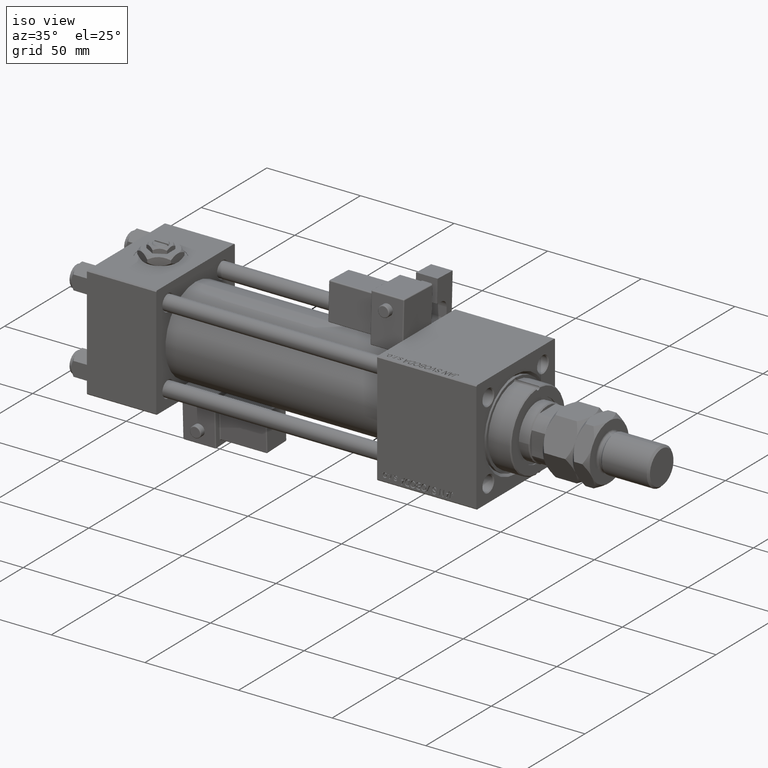
[diagram: clean part render]
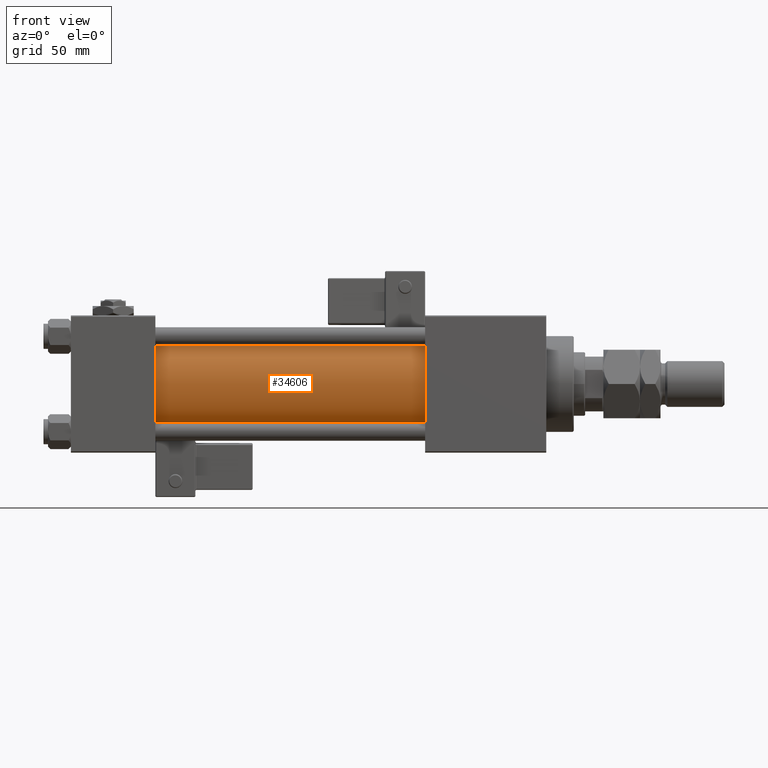
[diagram: tour spotlight — one face highlighted and labeled with its STEP entity id]
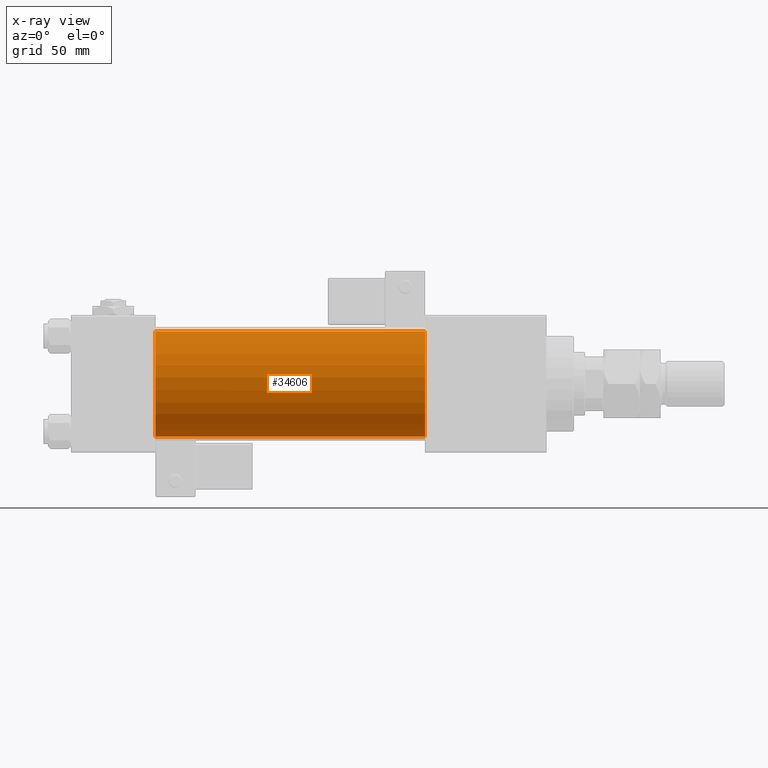
[diagram: x-ray of the same camera — body ghosted, this tour face saturated]
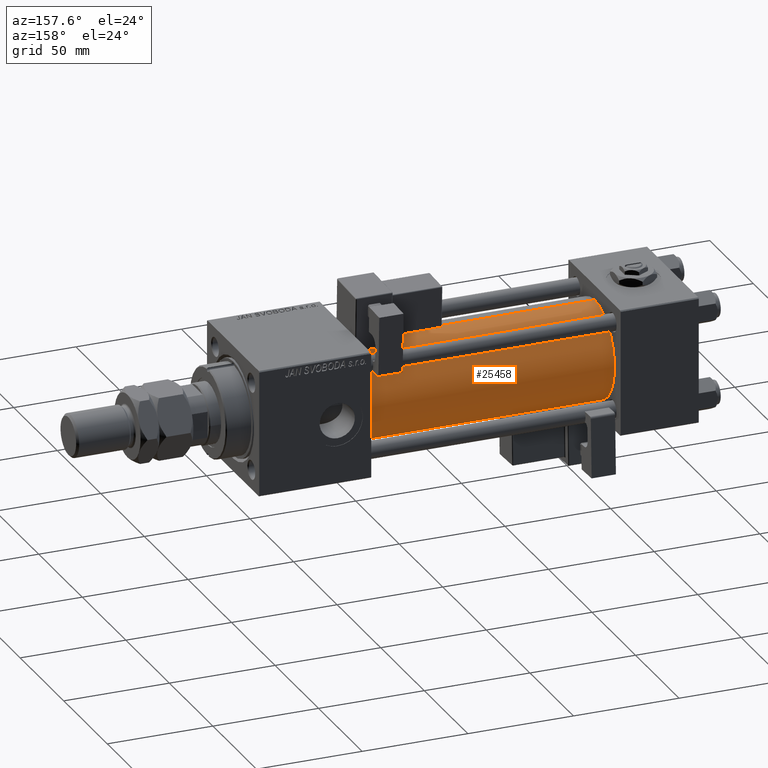
[diagram: tour spotlight — one face highlighted and labeled with its STEP entity id]
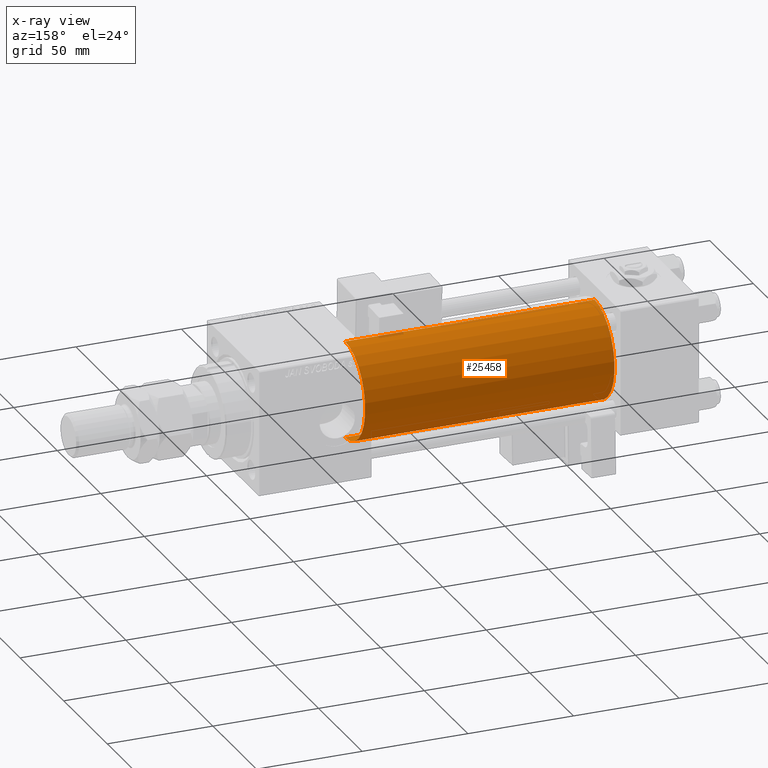
[diagram: x-ray of the same camera — body ghosted, this tour face saturated]
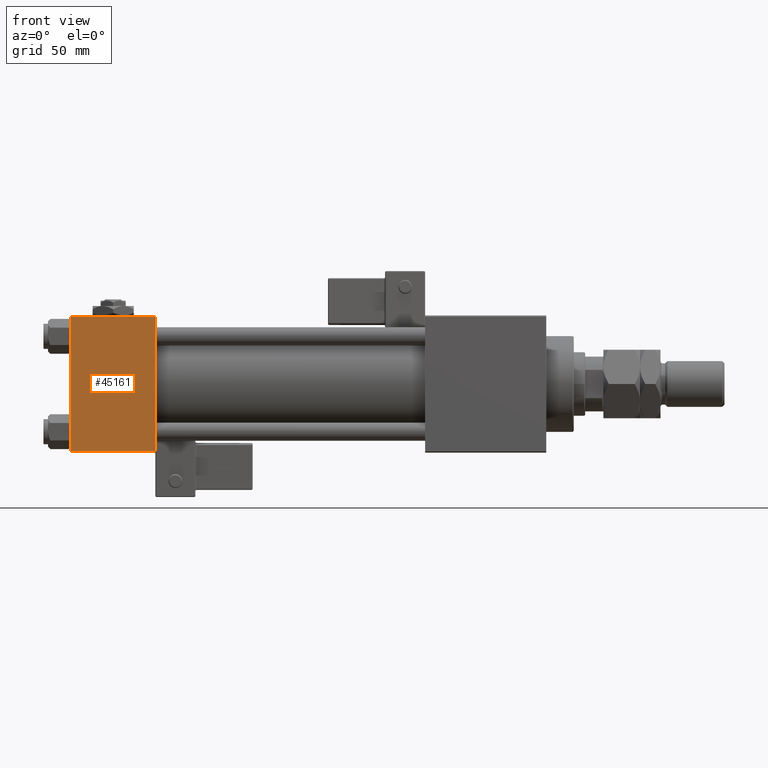
[diagram: tour spotlight — one face highlighted and labeled with its STEP entity id]
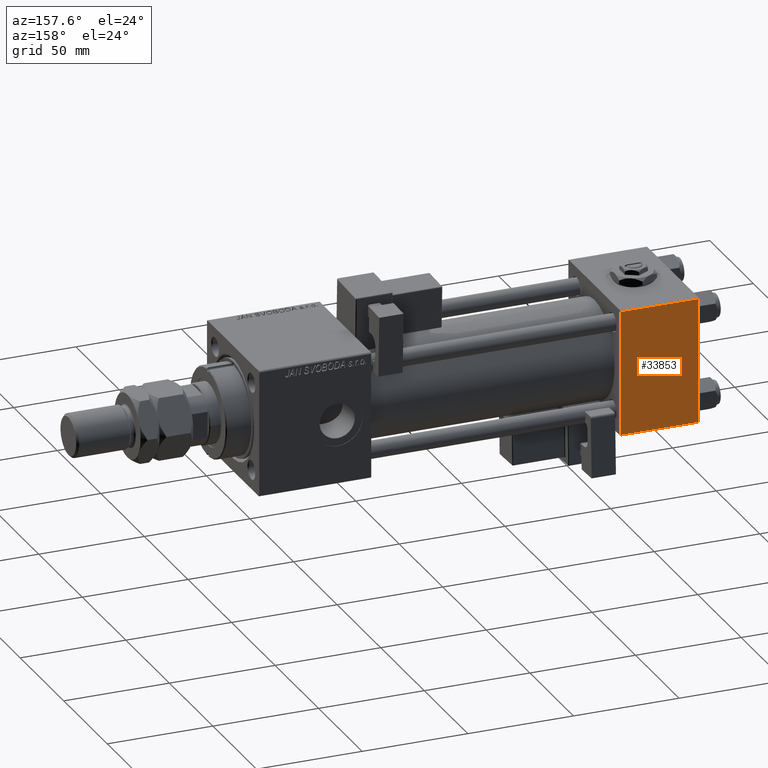
[diagram: tour spotlight — one face highlighted and labeled with its STEP entity id]
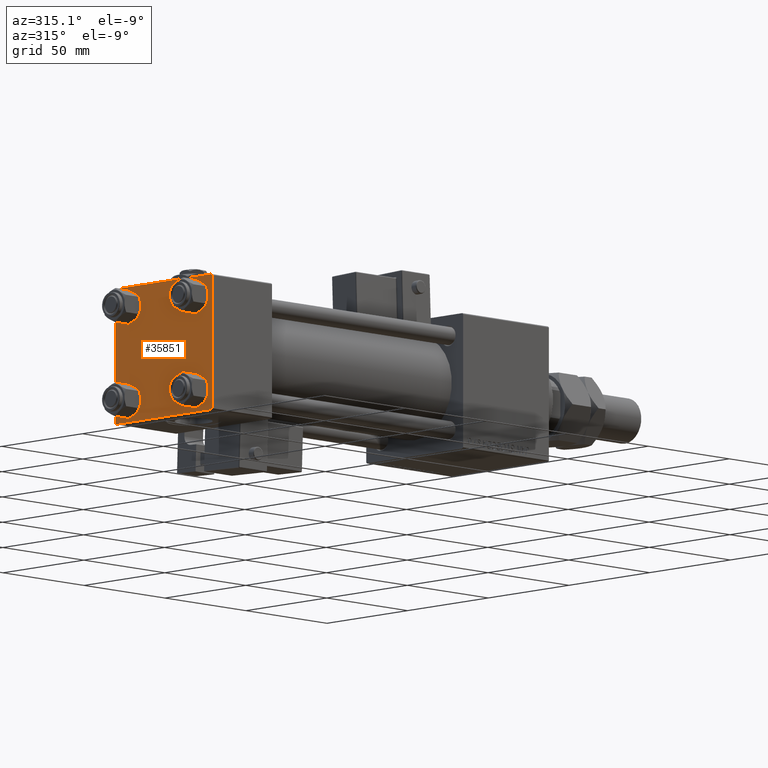
[diagram: tour spotlight — one face highlighted and labeled with its STEP entity id]
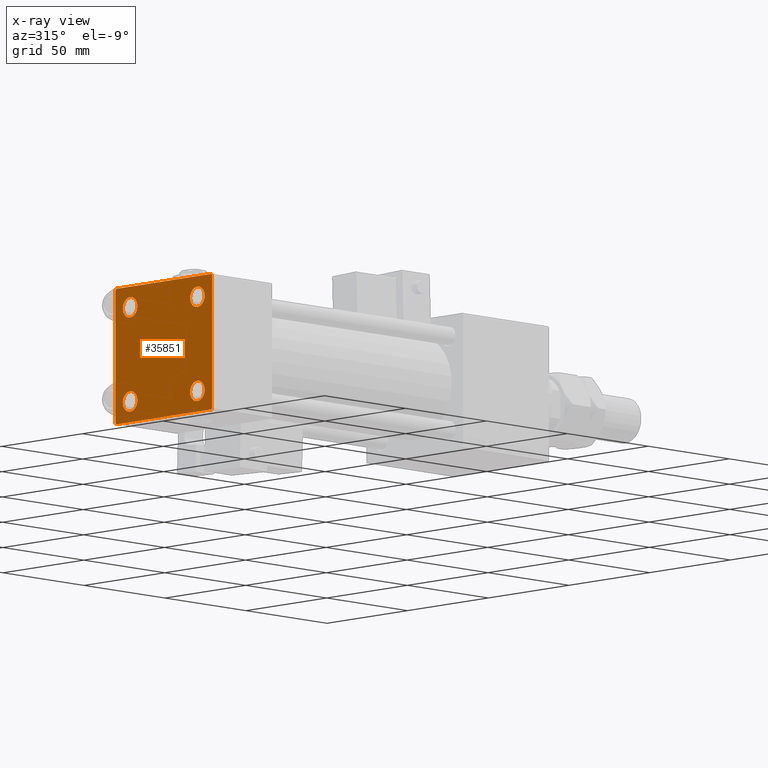
[diagram: x-ray of the same camera — body ghosted, this tour face saturated]
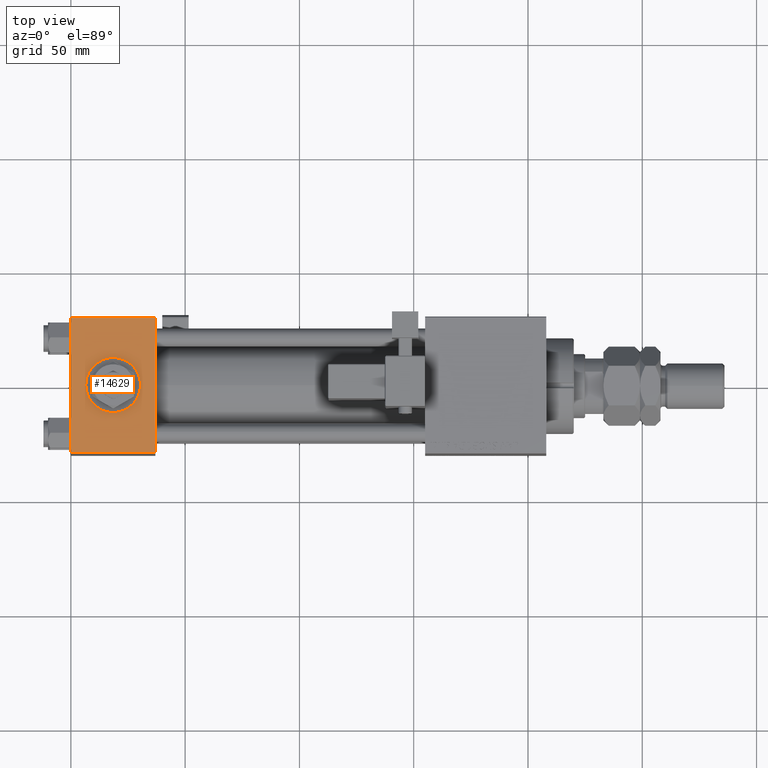
[diagram: tour spotlight — one face highlighted and labeled with its STEP entity id]
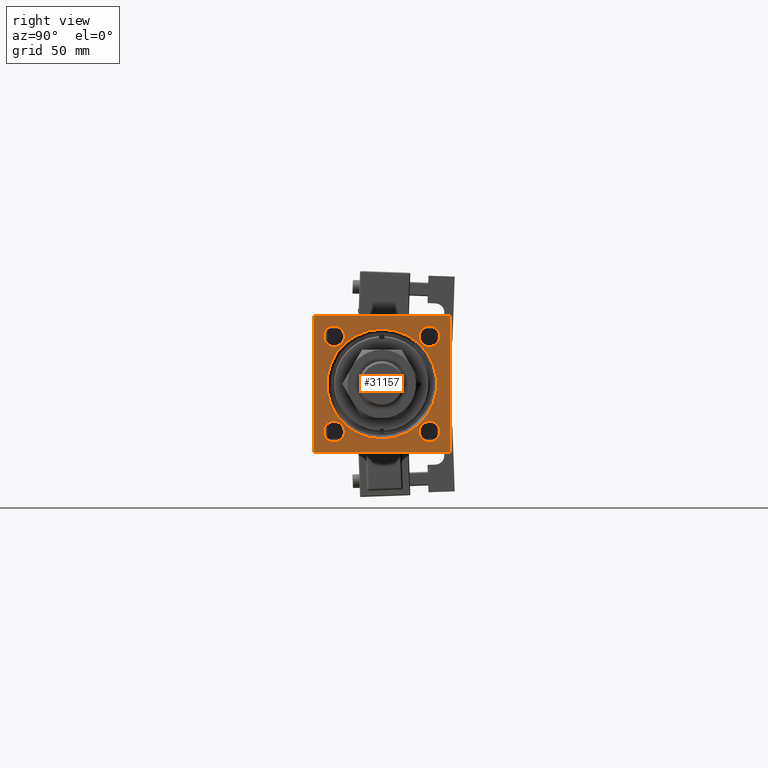
[diagram: tour spotlight — one face highlighted and labeled with its STEP entity id]
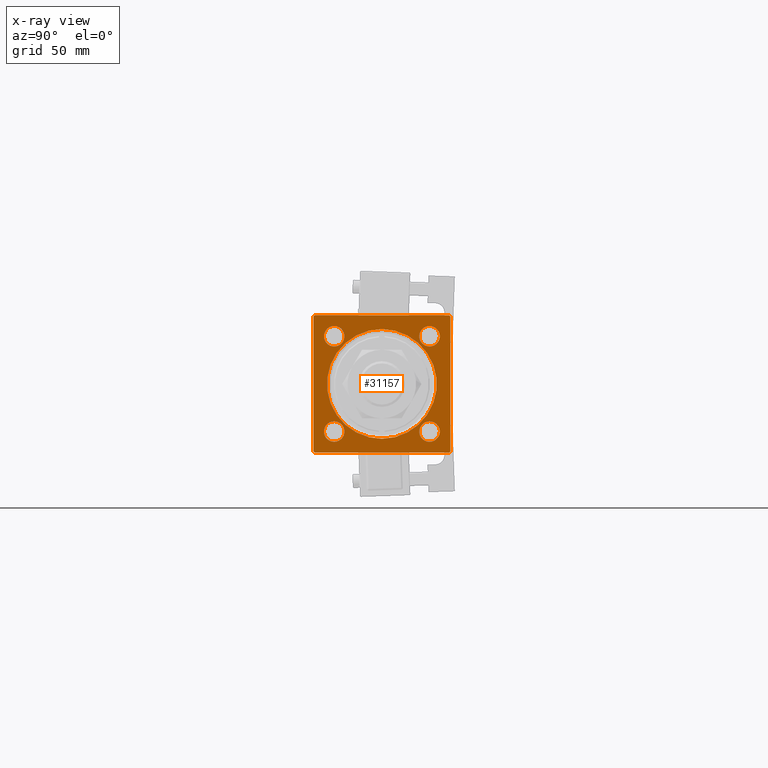
[diagram: x-ray of the same camera — body ghosted, this tour face saturated]
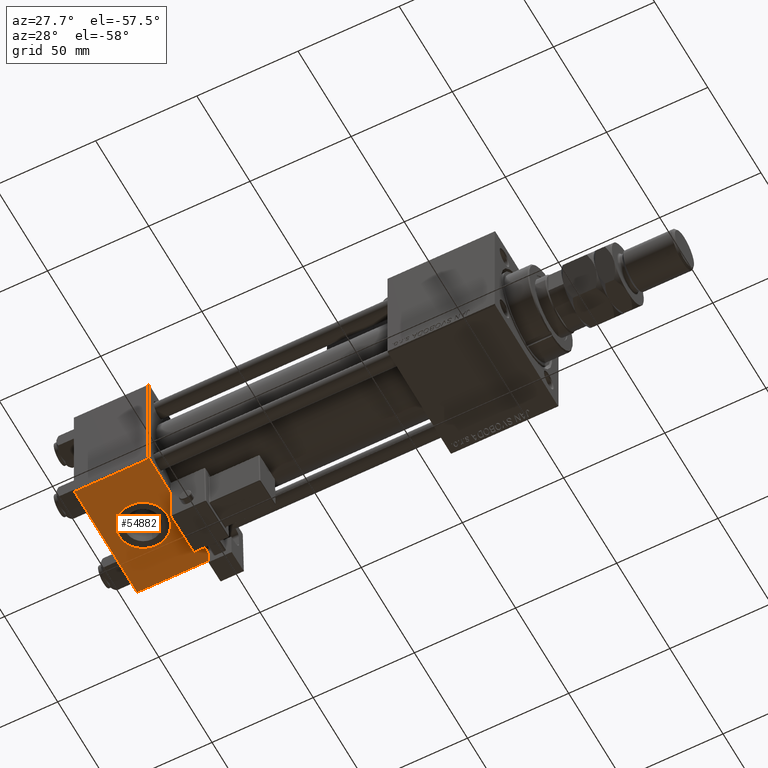
[diagram: tour spotlight — one face highlighted and labeled with its STEP entity id]
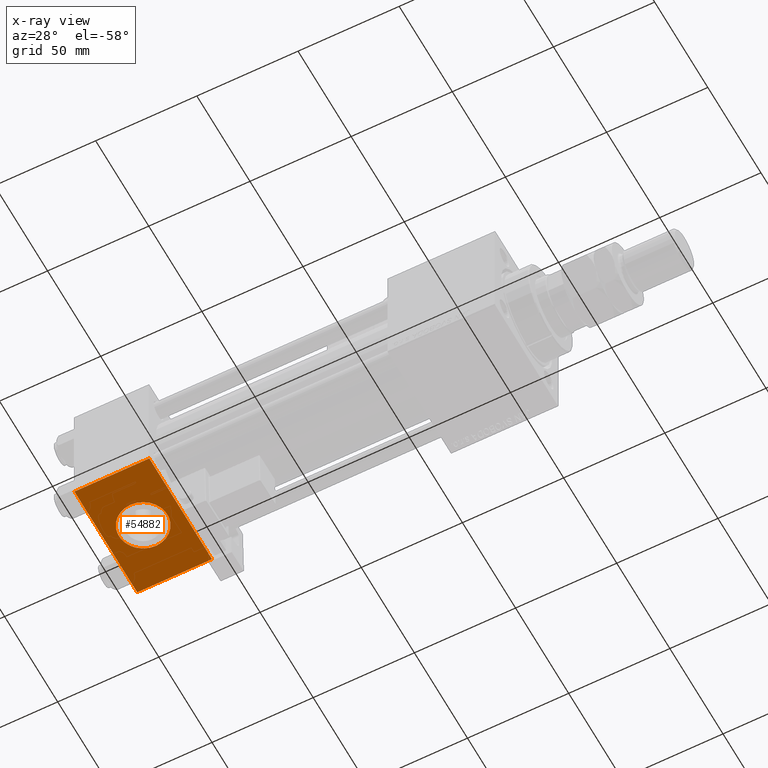
[diagram: x-ray of the same camera — body ghosted, this tour face saturated]
A machine part: a face-by-face anatomy tour. The part has 1411 B-rep faces; the first image is the clean iso view, then the 8 largest visible faces are spotlighted one at a time (largest first), each with its STEP entity span.

Face 1 — front view, entity #34606. An x-ray twin of the same camera follows (body ghosted, this face saturated) — the face is partly hidden behind the body. In plain terms, the highlighted cylindrical surface (partial cylindrical patch) has radius 23 mm, axis along (-1, -0, -0).
Definition (entity closure, byte-faithful):
#1485 = VERTEX_POINT ( 'NONE', #46100 ) ;
#4087 = DIRECTION ( 'NONE',  ( 0.000000000000000000, 0.000000000000000000, 1.000000000000000000 ) ) ;
#4525 = VERTEX_POINT ( 'NONE', #6107 ) ;
#5944 = DIRECTION ( 'NONE',  ( 0.000000000000000000, 0.000000000000000000, -1.000000000000000000 ) ) ;
#6107 = CARTESIAN_POINT ( 'NONE',  ( 37.00000000000000711, 2.146024240737016609E-16, -23.00000000000000000 ) ) ;
#6563 = DIRECTION ( 'NONE',  ( -1.000000000000000000, -0.000000000000000000, -0.000000000000000000 ) ) ;
#8332 = DIRECTION ( 'NONE',  ( -1.000000000000000000, -0.000000000000000000, -0.000000000000000000 ) ) ;
#10411 = CIRCLE ( 'NONE', #46615, 23.00000000000000000 ) ;
#10595 = VERTEX_POINT ( 'NONE', #48592 ) ;
#11440 = AXIS2_PLACEMENT_3D ( 'NONE', #12861, #8332, #4087 ) ;
#11646 = EDGE_CURVE ( 'NONE', #49626, #4525, #10411, .T. ) ;
#11949 = ORIENTED_EDGE ( 'NONE', *, *, #44717, .T. ) ;
#12386 = DIRECTION ( 'NONE',  ( 0.000000000000000000, 0.000000000000000000, 1.000000000000000000 ) ) ;
#12861 = CARTESIAN_POINT ( 'NONE',  ( 155.0000000000000000, -2.602085213965210642E-15, 0.000000000000000000 ) ) ;
#14253 = VECTOR ( 'NONE', #6563, 1000.000000000000000 ) ;
#15229 = EDGE_CURVE ( 'NONE', #1485, #4525, #28647, .T. ) ;
#15321 = CARTESIAN_POINT ( 'NONE',  ( 155.0000000000000000, 2.146024240737016609E-16, -23.00000000000000000 ) ) ;
#16066 = DIRECTION ( 'NONE',  ( 1.000000000000000000, -0.000000000000000000, 0.000000000000000000 ) ) ;
#19466 = LINE ( 'NONE', #49774, #48820 ) ;
#22360 = CARTESIAN_POINT ( 'NONE',  ( 37.00000000000000711, -2.602085213965210642E-15, 23.00000000000000000 ) ) ;
#24959 = ORIENTED_EDGE ( 'NONE', *, *, #11646, .T. ) ;
#27745 = DIRECTION ( 'NONE',  ( 1.000000000000000000, 0.000000000000000000, 0.000000000000000000 ) ) ;
#28647 = LINE ( 'NONE', #15321, #14253 ) ;
#31938 = DIRECTION ( 'NONE',  ( -1.000000000000000000, -0.000000000000000000, -0.000000000000000000 ) ) ;
#32277 = EDGE_LOOP ( 'NONE', ( #48260, #50847, #11949, #24959 ) ) ;
#33896 = EDGE_CURVE ( 'NONE', #10595, #1485, #40393, .T. ) ;
#34606 = ADVANCED_FACE ( 'NONE', ( #38923 ), #47134, .T. ) ;
#34989 = AXIS2_PLACEMENT_3D ( 'NONE', #37081, #27745, #5944 ) ;
#37081 = CARTESIAN_POINT ( 'NONE',  ( 155.0000000000000000, -2.602085213965210642E-15, 0.000000000000000000 ) ) ;
#38923 = FACE_OUTER_BOUND ( 'NONE', #32277, .T. ) ;
#40393 = CIRCLE ( 'NONE', #34989, 23.00000000000000000 ) ;
#44717 = EDGE_CURVE ( 'NONE', #10595, #49626, #19466, .T. ) ;
#46100 = CARTESIAN_POINT ( 'NONE',  ( 155.0000000000000000, 2.146024240737016609E-16, -23.00000000000000000 ) ) ;
#46615 = AXIS2_PLACEMENT_3D ( 'NONE', #50922, #16066, #12386 ) ;
#47134 = CYLINDRICAL_SURFACE ( 'NONE', #11440, 23.00000000000000000 ) ;
#48260 = ORIENTED_EDGE ( 'NONE', *, *, #15229, .F. ) ;
#48592 = CARTESIAN_POINT ( 'NONE',  ( 155.0000000000000000, -2.602085213965210642E-15, 23.00000000000000000 ) ) ;
#48820 = VECTOR ( 'NONE', #31938, 1000.000000000000000 ) ;
#49626 = VERTEX_POINT ( 'NONE', #22360 ) ;
#49774 = CARTESIAN_POINT ( 'NONE',  ( 155.0000000000000000, -2.602085213965210642E-15, 23.00000000000000000 ) ) ;
#50847 = ORIENTED_EDGE ( 'NONE', *, *, #33896, .F. ) ;
#50922 = CARTESIAN_POINT ( 'NONE',  ( 37.00000000000000711, -2.602085213965210642E-15, 0.000000000000000000 ) ) ;

Face 2 — auxiliary view, entity #25458. An x-ray twin of the same camera follows (body ghosted, this face saturated) — the face is partly hidden behind the body. In plain terms, the highlighted cylindrical surface (partial cylindrical patch) has radius 23 mm, axis along (-1, -0, -0).
Definition (entity closure, byte-faithful):
#1485 = VERTEX_POINT ( 'NONE', #46100 ) ;
#2649 = ORIENTED_EDGE ( 'NONE', *, *, #44717, .F. ) ;
#3792 = DIRECTION ( 'NONE',  ( 1.000000000000000000, 0.000000000000000000, 0.000000000000000000 ) ) ;
#4525 = VERTEX_POINT ( 'NONE', #6107 ) ;
#6107 = CARTESIAN_POINT ( 'NONE',  ( 37.00000000000000711, 2.146024240737016609E-16, -23.00000000000000000 ) ) ;
#6563 = DIRECTION ( 'NONE',  ( -1.000000000000000000, -0.000000000000000000, -0.000000000000000000 ) ) ;
#10595 = VERTEX_POINT ( 'NONE', #48592 ) ;
#14253 = VECTOR ( 'NONE', #6563, 1000.000000000000000 ) ;
#14384 = DIRECTION ( 'NONE',  ( 0.000000000000000000, 0.000000000000000000, 1.000000000000000000 ) ) ;
#14733 = EDGE_LOOP ( 'NONE', ( #49331, #19590, #45632, #2649 ) ) ;
#15229 = EDGE_CURVE ( 'NONE', #1485, #4525, #28647, .T. ) ;
#15321 = CARTESIAN_POINT ( 'NONE',  ( 155.0000000000000000, 2.146024240737016609E-16, -23.00000000000000000 ) ) ;
#16623 = AXIS2_PLACEMENT_3D ( 'NONE', #22902, #41299, #14384 ) ;
#16812 = CARTESIAN_POINT ( 'NONE',  ( 155.0000000000000000, -2.602085213965210642E-15, 0.000000000000000000 ) ) ;
#18653 = FACE_OUTER_BOUND ( 'NONE', #14733, .T. ) ;
#19466 = LINE ( 'NONE', #49774, #48820 ) ;
#19590 = ORIENTED_EDGE ( 'NONE', *, *, #15229, .T. ) ;
#22023 = DIRECTION ( 'NONE',  ( 0.000000000000000000, 0.000000000000000000, 1.000000000000000000 ) ) ;
#22360 = CARTESIAN_POINT ( 'NONE',  ( 37.00000000000000711, -2.602085213965210642E-15, 23.00000000000000000 ) ) ;
#22902 = CARTESIAN_POINT ( 'NONE',  ( 155.0000000000000000, -2.602085213965210642E-15, 0.000000000000000000 ) ) ;
#25458 = ADVANCED_FACE ( 'NONE', ( #18653 ), #53201, .T. ) ;
#26625 = EDGE_CURVE ( 'NONE', #4525, #49626, #44739, .T. ) ;
#27569 = AXIS2_PLACEMENT_3D ( 'NONE', #16812, #3792, #55909 ) ;
#28647 = LINE ( 'NONE', #15321, #14253 ) ;
#29402 = CARTESIAN_POINT ( 'NONE',  ( 37.00000000000000711, -2.602085213965210642E-15, 0.000000000000000000 ) ) ;
#30456 = EDGE_CURVE ( 'NONE', #1485, #10595, #52021, .T. ) ;
#31938 = DIRECTION ( 'NONE',  ( -1.000000000000000000, -0.000000000000000000, -0.000000000000000000 ) ) ;
#41299 = DIRECTION ( 'NONE',  ( -1.000000000000000000, -0.000000000000000000, -0.000000000000000000 ) ) ;
#44717 = EDGE_CURVE ( 'NONE', #10595, #49626, #19466, .T. ) ;
#44739 = CIRCLE ( 'NONE', #53786, 23.00000000000000000 ) ;
#45632 = ORIENTED_EDGE ( 'NONE', *, *, #26625, .T. ) ;
#46100 = CARTESIAN_POINT ( 'NONE',  ( 155.0000000000000000, 2.146024240737016609E-16, -23.00000000000000000 ) ) ;
#48592 = CARTESIAN_POINT ( 'NONE',  ( 155.0000000000000000, -2.602085213965210642E-15, 23.00000000000000000 ) ) ;
#48820 = VECTOR ( 'NONE', #31938, 1000.000000000000000 ) ;
#49331 = ORIENTED_EDGE ( 'NONE', *, *, #30456, .F. ) ;
#49626 = VERTEX_POINT ( 'NONE', #22360 ) ;
#49774 = CARTESIAN_POINT ( 'NONE',  ( 155.0000000000000000, -2.602085213965210642E-15, 23.00000000000000000 ) ) ;
#52021 = CIRCLE ( 'NONE', #27569, 23.00000000000000000 ) ;
#53201 = CYLINDRICAL_SURFACE ( 'NONE', #16623, 23.00000000000000000 ) ;
#53786 = AXIS2_PLACEMENT_3D ( 'NONE', #29402, #55743, #22023 ) ;
#55743 = DIRECTION ( 'NONE',  ( 1.000000000000000000, -0.000000000000000000, 0.000000000000000000 ) ) ;
#55909 = DIRECTION ( 'NONE',  ( 0.000000000000000000, 0.000000000000000000, -1.000000000000000000 ) ) ;

Face 3 — front view, entity #45161. In plain terms, the highlighted planar face has unit normal (0, 1, 0).
Definition (entity closure, byte-faithful):
#2973 = VECTOR ( 'NONE', #40322, 1000.000000000000000 ) ;
#7099 = VECTOR ( 'NONE', #9395, 1000.000000000000000 ) ;
#7804 = CARTESIAN_POINT ( 'NONE',  ( 37.00000000000000000, -30.00000000000000000, 29.99999999999999289 ) ) ;
#8611 = VERTEX_POINT ( 'NONE', #22937 ) ;
#9395 = DIRECTION ( 'NONE',  ( 1.000000000000000000, 0.000000000000000000, 0.000000000000000000 ) ) ;
#9642 = DIRECTION ( 'NONE',  ( -1.000000000000000000, 0.000000000000000000, 0.000000000000000000 ) ) ;
#9933 = FACE_OUTER_BOUND ( 'NONE', #32912, .T. ) ;
#10331 = ORIENTED_EDGE ( 'NONE', *, *, #33857, .T. ) ;
#11793 = VERTEX_POINT ( 'NONE', #47658 ) ;
#12286 = CARTESIAN_POINT ( 'NONE',  ( 37.00000000000000000, -30.00000000000000000, 29.49999999999999289 ) ) ;
#15086 = CARTESIAN_POINT ( 'NONE',  ( 0.000000000000000000, -30.00000000000000000, 29.99999999999999289 ) ) ;
#16851 = LINE ( 'NONE', #7804, #23305 ) ;
#20757 = ORIENTED_EDGE ( 'NONE', *, *, #37367, .F. ) ;
#21590 = CARTESIAN_POINT ( 'NONE',  ( 37.00000000000000000, -30.00000000000000000, -29.50000000000001776 ) ) ;
#22937 = CARTESIAN_POINT ( 'NONE',  ( 37.00000000000000000, -30.00000000000000000, -29.50000000000001776 ) ) ;
#23231 = DIRECTION ( 'NONE',  ( -0.000000000000000000, 1.000000000000000000, 0.000000000000000000 ) ) ;
#23281 = CARTESIAN_POINT ( 'NONE',  ( 0.000000000000000000, -30.00000000000000000, 29.49999999999999289 ) ) ;
#23305 = VECTOR ( 'NONE', #25068, 1000.000000000000000 ) ;
#23847 = ORIENTED_EDGE ( 'NONE', *, *, #55403, .T. ) ;
#25068 = DIRECTION ( 'NONE',  ( 0.000000000000000000, 0.000000000000000000, -1.000000000000000000 ) ) ;
#25594 = CARTESIAN_POINT ( 'NONE',  ( 37.00000000000000000, -30.00000000000000000, 29.49999999999999289 ) ) ;
#26923 = PLANE ( 'NONE',  #50614 ) ;
#30447 = VERTEX_POINT ( 'NONE', #25594 ) ;
#32014 = DIRECTION ( 'NONE',  ( 0.000000000000000000, -0.000000000000000000, 1.000000000000000000 ) ) ;
#32912 = EDGE_LOOP ( 'NONE', ( #23847, #44282, #20757, #10331 ) ) ;
#33857 = EDGE_CURVE ( 'NONE', #30447, #44084, #51379, .T. ) ;
#37367 = EDGE_CURVE ( 'NONE', #30447, #8611, #16851, .T. ) ;
#39291 = EDGE_CURVE ( 'NONE', #11793, #8611, #43124, .T. ) ;
#40322 = DIRECTION ( 'NONE',  ( 0.000000000000000000, 0.000000000000000000, -1.000000000000000000 ) ) ;
#41282 = VECTOR ( 'NONE', #9642, 1000.000000000000000 ) ;
#43124 = LINE ( 'NONE', #21590, #7099 ) ;
#44084 = VERTEX_POINT ( 'NONE', #23281 ) ;
#44282 = ORIENTED_EDGE ( 'NONE', *, *, #39291, .T. ) ;
#44494 = CARTESIAN_POINT ( 'NONE',  ( 37.00000000000000000, -30.00000000000000000, 29.99999999999999289 ) ) ;
#45161 = ADVANCED_FACE ( 'NONE', ( #9933 ), #26923, .F. ) ;
#47658 = CARTESIAN_POINT ( 'NONE',  ( 0.000000000000000000, -30.00000000000000000, -29.50000000000001776 ) ) ;
#50614 = AXIS2_PLACEMENT_3D ( 'NONE', #44494, #23231, #32014 ) ;
#51379 = LINE ( 'NONE', #12286, #41282 ) ;
#53632 = LINE ( 'NONE', #15086, #2973 ) ;
#55403 = EDGE_CURVE ( 'NONE', #44084, #11793, #53632, .T. ) ;

Face 4 — auxiliary view, entity #33853. In plain terms, the highlighted planar face has unit normal (0, 1, 0).
Definition (entity closure, byte-faithful):
#486 = LINE ( 'NONE', #25967, #8111 ) ;
#4036 = DIRECTION ( 'NONE',  ( 0.000000000000000000, 0.000000000000000000, -1.000000000000000000 ) ) ;
#4919 = CARTESIAN_POINT ( 'NONE',  ( 37.00000000000000000, 29.99999999999999289, 29.50000000000000000 ) ) ;
#5387 = DIRECTION ( 'NONE',  ( 0.000000000000000000, -0.000000000000000000, 1.000000000000000000 ) ) ;
#8111 = VECTOR ( 'NONE', #35293, 1000.000000000000000 ) ;
#9911 = CARTESIAN_POINT ( 'NONE',  ( 37.00000000000000000, 29.99999999999999289, 30.00000000000000000 ) ) ;
#11634 = ORIENTED_EDGE ( 'NONE', *, *, #44848, .F. ) ;
#11853 = DIRECTION ( 'NONE',  ( -1.000000000000000000, 0.000000000000000000, 0.000000000000000000 ) ) ;
#12204 = EDGE_LOOP ( 'NONE', ( #16601, #18242, #11634, #41245 ) ) ;
#16601 = ORIENTED_EDGE ( 'NONE', *, *, #39226, .T. ) ;
#16809 = DIRECTION ( 'NONE',  ( -0.000000000000000000, 1.000000000000000000, 0.000000000000000000 ) ) ;
#17659 = EDGE_CURVE ( 'NONE', #27793, #28995, #50109, .T. ) ;
#17892 = CARTESIAN_POINT ( 'NONE',  ( 37.00000000000000000, 29.99999999999999289, 30.00000000000000000 ) ) ;
#18242 = ORIENTED_EDGE ( 'NONE', *, *, #17659, .T. ) ;
#19922 = VECTOR ( 'NONE', #11853, 1000.000000000000000 ) ;
#25967 = CARTESIAN_POINT ( 'NONE',  ( 0.000000000000000000, 29.99999999999999289, 30.00000000000000000 ) ) ;
#26765 = VERTEX_POINT ( 'NONE', #44375 ) ;
#27793 = VERTEX_POINT ( 'NONE', #39104 ) ;
#28995 = VERTEX_POINT ( 'NONE', #46698 ) ;
#29330 = CARTESIAN_POINT ( 'NONE',  ( 37.00000000000000000, 29.99999999999999289, 29.50000000000000000 ) ) ;
#33301 = DIRECTION ( 'NONE',  ( 1.000000000000000000, 0.000000000000000000, 0.000000000000000000 ) ) ;
#33853 = ADVANCED_FACE ( 'NONE', ( #48447 ), #47124, .T. ) ;
#35293 = DIRECTION ( 'NONE',  ( 0.000000000000000000, 0.000000000000000000, -1.000000000000000000 ) ) ;
#39104 = CARTESIAN_POINT ( 'NONE',  ( 37.00000000000000000, 29.99999999999999289, -29.50000000000000000 ) ) ;
#39226 = EDGE_CURVE ( 'NONE', #43056, #27793, #48202, .T. ) ;
#41245 = ORIENTED_EDGE ( 'NONE', *, *, #49373, .T. ) ;
#41579 = VECTOR ( 'NONE', #33301, 1000.000000000000000 ) ;
#41600 = CARTESIAN_POINT ( 'NONE',  ( 37.00000000000000000, 29.99999999999999289, -29.50000000000000000 ) ) ;
#42345 = LINE ( 'NONE', #29330, #41579 ) ;
#43056 = VERTEX_POINT ( 'NONE', #4919 ) ;
#44375 = CARTESIAN_POINT ( 'NONE',  ( 0.000000000000000000, 29.99999999999999289, 29.50000000000000000 ) ) ;
#44848 = EDGE_CURVE ( 'NONE', #26765, #28995, #486, .T. ) ;
#46014 = VECTOR ( 'NONE', #4036, 1000.000000000000000 ) ;
#46698 = CARTESIAN_POINT ( 'NONE',  ( 0.000000000000000000, 29.99999999999999289, -29.50000000000000000 ) ) ;
#47124 = PLANE ( 'NONE',  #52139 ) ;
#48202 = LINE ( 'NONE', #17892, #46014 ) ;
#48447 = FACE_OUTER_BOUND ( 'NONE', #12204, .T. ) ;
#49373 = EDGE_CURVE ( 'NONE', #26765, #43056, #42345, .T. ) ;
#50109 = LINE ( 'NONE', #41600, #19922 ) ;
#52139 = AXIS2_PLACEMENT_3D ( 'NONE', #9911, #16809, #5387 ) ;

Face 5 — auxiliary view, entity #35851. An x-ray twin of the same camera follows (body ghosted, this face saturated) — the face is partly hidden behind the body. In plain terms, the highlighted planar face has unit normal (-1, 0, 0).
Definition (entity closure, byte-faithful):
#271 = AXIS2_PLACEMENT_3D ( 'NONE', #17066, #43147, #3765 ) ;
#486 = LINE ( 'NONE', #25967, #8111 ) ;
#821 = CARTESIAN_POINT ( 'NONE',  ( 0.000000000000000000, -20.84999999999999076, -20.85000000000000497 ) ) ;
#1680 = EDGE_CURVE ( 'NONE', #29343, #11793, #36129, .T. ) ;
#1762 = VERTEX_POINT ( 'NONE', #42051 ) ;
#1829 = ORIENTED_EDGE ( 'NONE', *, *, #36411, .T. ) ;
#1886 = CARTESIAN_POINT ( 'NONE',  ( 0.000000000000000000, -20.84999999999999076, 20.85000000000000497 ) ) ;
#2711 = EDGE_CURVE ( 'NONE', #3661, #26765, #27080, .T. ) ;
#2733 = CARTESIAN_POINT ( 'NONE',  ( 0.000000000000000000, 20.84999999999999787, -20.85000000000000142 ) ) ;
#2849 = CIRCLE ( 'NONE', #15480, 4.500000000000017764 ) ;
#2973 = VECTOR ( 'NONE', #40322, 1000.000000000000000 ) ;
#3661 = VERTEX_POINT ( 'NONE', #25048 ) ;
#3765 = DIRECTION ( 'NONE',  ( 0.000000000000000000, 0.000000000000000000, 1.000000000000000000 ) ) ;
#4039 = CARTESIAN_POINT ( 'NONE',  ( 0.000000000000000000, 20.84999999999999787, 16.34999999999998366 ) ) ;
#4191 = CARTESIAN_POINT ( 'NONE',  ( 0.000000000000000000, 20.84999999999999787, 25.35000000000001918 ) ) ;
#4349 = ORIENTED_EDGE ( 'NONE', *, *, #38406, .T. ) ;
#5168 = VERTEX_POINT ( 'NONE', #4039 ) ;
#5689 = ORIENTED_EDGE ( 'NONE', *, *, #23198, .F. ) ;
#5753 = VERTEX_POINT ( 'NONE', #33650 ) ;
#6025 = VERTEX_POINT ( 'NONE', #46542 ) ;
#7095 = EDGE_LOOP ( 'NONE', ( #32974, #46455 ) ) ;
#7270 = DIRECTION ( 'NONE',  ( 0.000000000000000000, 0.000000000000000000, 1.000000000000000000 ) ) ;
#7428 = DIRECTION ( 'NONE',  ( -0.000000000000000000, 0.000000000000000000, 1.000000000000000000 ) ) ;
#7634 = EDGE_LOOP ( 'NONE', ( #34614, #4349 ) ) ;
#7797 = VERTEX_POINT ( 'NONE', #10667 ) ;
#7826 = EDGE_CURVE ( 'NONE', #7797, #5753, #46460, .T. ) ;
#8111 = VECTOR ( 'NONE', #35293, 1000.000000000000000 ) ;
#9564 = CIRCLE ( 'NONE', #41225, 4.500000000000017764 ) ;
#10545 = DIRECTION ( 'NONE',  ( 1.000000000000000000, -0.000000000000000000, 0.000000000000000000 ) ) ;
#10667 = CARTESIAN_POINT ( 'NONE',  ( 0.000000000000000000, 20.84999999999999787, -16.34999999999998366 ) ) ;
#11241 = CARTESIAN_POINT ( 'NONE',  ( 0.000000000000000000, -20.84999999999999076, -20.85000000000000497 ) ) ;
#11621 = CIRCLE ( 'NONE', #42392, 4.500000000000017764 ) ;
#11793 = VERTEX_POINT ( 'NONE', #47658 ) ;
#11952 = DIRECTION ( 'NONE',  ( -1.000000000000000000, 0.000000000000000000, -0.000000000000000000 ) ) ;
#12317 = CARTESIAN_POINT ( 'NONE',  ( 0.000000000000000000, 20.84999999999999787, 20.85000000000000142 ) ) ;
#13405 = EDGE_CURVE ( 'NONE', #32870, #48030, #9564, .T. ) ;
#14007 = CARTESIAN_POINT ( 'NONE',  ( 0.000000000000000000, -29.50000000000000000, -30.00000000000000711 ) ) ;
#14493 = DIRECTION ( 'NONE',  ( 0.000000000000000000, 0.000000000000000000, 1.000000000000000000 ) ) ;
#15057 = CARTESIAN_POINT ( 'NONE',  ( 0.000000000000000000, -20.84999999999999076, 20.85000000000000497 ) ) ;
#15086 = CARTESIAN_POINT ( 'NONE',  ( 0.000000000000000000, -30.00000000000000000, 29.99999999999999289 ) ) ;
#15255 = CARTESIAN_POINT ( 'NONE',  ( 0.000000000000000000, -20.84999999999999076, 16.34999999999998721 ) ) ;
#15310 = ORIENTED_EDGE ( 'NONE', *, *, #46204, .T. ) ;
#15480 = AXIS2_PLACEMENT_3D ( 'NONE', #15057, #10545, #14493 ) ;
#16013 = EDGE_CURVE ( 'NONE', #48030, #32870, #2849, .T. ) ;
#16666 = CARTESIAN_POINT ( 'NONE',  ( 0.000000000000000000, 29.99999999999999289, 30.00000000000000000 ) ) ;
#16944 = DIRECTION ( 'NONE',  ( 0.000000000000000000, -1.000000000000000000, -1.156482317317871725E-16 ) ) ;
#17066 = CARTESIAN_POINT ( 'NONE',  ( 0.000000000000000000, 20.84999999999999787, -20.85000000000000142 ) ) ;
#17269 = EDGE_LOOP ( 'NONE', ( #15310, #1829 ) ) ;
#18030 = DIRECTION ( 'NONE',  ( 0.000000000000000000, 0.7071067811865474617, -0.7071067811865474617 ) ) ;
#18578 = CARTESIAN_POINT ( 'NONE',  ( 0.000000000000000000, -29.75000000000001066, -29.75000000000001066 ) ) ;
#19120 = CARTESIAN_POINT ( 'NONE',  ( 0.000000000000000000, 29.99999999999999289, -30.00000000000000000 ) ) ;
#20061 = CARTESIAN_POINT ( 'NONE',  ( -0.000000000000000000, -29.74999999999999645, 29.74999999999999645 ) ) ;
#20907 = LINE ( 'NONE', #16666, #48212 ) ;
#20961 = CARTESIAN_POINT ( 'NONE',  ( 0.000000000000000000, 20.84999999999999787, 20.85000000000000142 ) ) ;
#21008 = VECTOR ( 'NONE', #18030, 1000.000000000000114 ) ;
#21831 = EDGE_CURVE ( 'NONE', #5753, #7797, #34638, .T. ) ;
#21839 = CARTESIAN_POINT ( 'NONE',  ( 0.000000000000000000, -20.84999999999999076, 25.35000000000002274 ) ) ;
#22572 = DIRECTION ( 'NONE',  ( 0.000000000000000000, 0.000000000000000000, 1.000000000000000000 ) ) ;
#22816 = LINE ( 'NONE', #19120, #25176 ) ;
#23198 = EDGE_CURVE ( 'NONE', #3661, #48634, #20907, .T. ) ;
#23281 = CARTESIAN_POINT ( 'NONE',  ( 0.000000000000000000, -30.00000000000000000, 29.49999999999999289 ) ) ;
#23688 = DIRECTION ( 'NONE',  ( 0.000000000000000000, 0.000000000000000000, 1.000000000000000000 ) ) ;
#24891 = CARTESIAN_POINT ( 'NONE',  ( 0.000000000000000000, 29.74999999999957723, -29.75000000000040501 ) ) ;
#25048 = CARTESIAN_POINT ( 'NONE',  ( 0.000000000000000000, 29.49999999999999289, 30.00000000000000000 ) ) ;
#25176 = VECTOR ( 'NONE', #49428, 1000.000000000000000 ) ;
#25625 = AXIS2_PLACEMENT_3D ( 'NONE', #2733, #41529, #23688 ) ;
#25758 = ORIENTED_EDGE ( 'NONE', *, *, #1680, .T. ) ;
#25967 = CARTESIAN_POINT ( 'NONE',  ( 0.000000000000000000, 29.99999999999999289, 30.00000000000000000 ) ) ;
#26314 = DIRECTION ( 'NONE',  ( 1.000000000000000000, -0.000000000000000000, 0.000000000000000000 ) ) ;
#26641 = VERTEX_POINT ( 'NONE', #4191 ) ;
#26765 = VERTEX_POINT ( 'NONE', #44375 ) ;
#27080 = LINE ( 'NONE', #48606, #21008 ) ;
#27737 = ORIENTED_EDGE ( 'NONE', *, *, #7826, .T. ) ;
#28995 = VERTEX_POINT ( 'NONE', #46698 ) ;
#29151 = LINE ( 'NONE', #24891, #44768 ) ;
#29343 = VERTEX_POINT ( 'NONE', #14007 ) ;
#29522 = FACE_OUTER_BOUND ( 'NONE', #35238, .T. ) ;
#29819 = ORIENTED_EDGE ( 'NONE', *, *, #55403, .F. ) ;
#30340 = EDGE_CURVE ( 'NONE', #28995, #6025, #29151, .T. ) ;
#31601 = DIRECTION ( 'NONE',  ( 0.000000000000000000, -0.7071067811865474617, 0.7071067811865474617 ) ) ;
#32306 = EDGE_CURVE ( 'NONE', #44084, #48634, #41038, .T. ) ;
#32870 = VERTEX_POINT ( 'NONE', #21839 ) ;
#32974 = ORIENTED_EDGE ( 'NONE', *, *, #13405, .T. ) ;
#33169 = ORIENTED_EDGE ( 'NONE', *, *, #32306, .T. ) ;
#33324 = AXIS2_PLACEMENT_3D ( 'NONE', #821, #26314, #35363 ) ;
#33650 = CARTESIAN_POINT ( 'NONE',  ( 0.000000000000000000, 20.84999999999999787, -25.35000000000001918 ) ) ;
#34007 = DIRECTION ( 'NONE',  ( 0.000000000000000000, 0.000000000000000000, 1.000000000000000000 ) ) ;
#34406 = DIRECTION ( 'NONE',  ( 1.000000000000000000, -0.000000000000000000, 0.000000000000000000 ) ) ;
#34614 = ORIENTED_EDGE ( 'NONE', *, *, #40799, .T. ) ;
#34638 = CIRCLE ( 'NONE', #271, 4.500000000000017764 ) ;
#35238 = EDGE_LOOP ( 'NONE', ( #46622, #44818, #47886, #25758, #29819, #33169, #5689, #38044 ) ) ;
#35293 = DIRECTION ( 'NONE',  ( 0.000000000000000000, 0.000000000000000000, -1.000000000000000000 ) ) ;
#35363 = DIRECTION ( 'NONE',  ( 0.000000000000000000, 0.000000000000000000, 1.000000000000000000 ) ) ;
#35613 = DIRECTION ( 'NONE',  ( 1.000000000000000000, -0.000000000000000000, 0.000000000000000000 ) ) ;
#35851 = ADVANCED_FACE ( 'NONE', ( #51054, #46799, #47075, #37739, #29522 ), #46235, .T. ) ;
#36129 = LINE ( 'NONE', #18578, #39065 ) ;
#36411 = EDGE_CURVE ( 'NONE', #5168, #26641, #48594, .T. ) ;
#36857 = AXIS2_PLACEMENT_3D ( 'NONE', #12317, #34406, #55371 ) ;
#37611 = VECTOR ( 'NONE', #42433, 1000.000000000000114 ) ;
#37739 = FACE_BOUND ( 'NONE', #17269, .T. ) ;
#37996 = EDGE_CURVE ( 'NONE', #6025, #29343, #22816, .T. ) ;
#38044 = ORIENTED_EDGE ( 'NONE', *, *, #2711, .T. ) ;
#38252 = DIRECTION ( 'NONE',  ( 1.000000000000000000, -0.000000000000000000, 0.000000000000000000 ) ) ;
#38406 = EDGE_CURVE ( 'NONE', #1762, #45236, #51440, .T. ) ;
#39065 = VECTOR ( 'NONE', #31601, 1000.000000000000114 ) ;
#39755 = ORIENTED_EDGE ( 'NONE', *, *, #21831, .T. ) ;
#40322 = DIRECTION ( 'NONE',  ( 0.000000000000000000, 0.000000000000000000, -1.000000000000000000 ) ) ;
#40799 = EDGE_CURVE ( 'NONE', #45236, #1762, #47916, .T. ) ;
#41038 = LINE ( 'NONE', #20061, #37611 ) ;
#41095 = EDGE_LOOP ( 'NONE', ( #27737, #39755 ) ) ;
#41225 = AXIS2_PLACEMENT_3D ( 'NONE', #1886, #35613, #22572 ) ;
#41354 = AXIS2_PLACEMENT_3D ( 'NONE', #42537, #11952, #7428 ) ;
#41529 = DIRECTION ( 'NONE',  ( 1.000000000000000000, -0.000000000000000000, 0.000000000000000000 ) ) ;
#42051 = CARTESIAN_POINT ( 'NONE',  ( 0.000000000000000000, -20.84999999999999076, -25.35000000000002274 ) ) ;
#42392 = AXIS2_PLACEMENT_3D ( 'NONE', #20961, #38252, #34007 ) ;
#42433 = DIRECTION ( 'NONE',  ( -0.000000000000000000, 0.7071067811865474617, 0.7071067811865474617 ) ) ;
#42537 = CARTESIAN_POINT ( 'NONE',  ( 0.000000000000000000, 0.000000000000000000, 0.000000000000000000 ) ) ;
#43147 = DIRECTION ( 'NONE',  ( 1.000000000000000000, -0.000000000000000000, 0.000000000000000000 ) ) ;
#44084 = VERTEX_POINT ( 'NONE', #23281 ) ;
#44375 = CARTESIAN_POINT ( 'NONE',  ( 0.000000000000000000, 29.99999999999999289, 29.50000000000000000 ) ) ;
#44768 = VECTOR ( 'NONE', #51523, 999.9999999999998863 ) ;
#44818 = ORIENTED_EDGE ( 'NONE', *, *, #30340, .T. ) ;
#44848 = EDGE_CURVE ( 'NONE', #26765, #28995, #486, .T. ) ;
#45236 = VERTEX_POINT ( 'NONE', #46736 ) ;
#46096 = AXIS2_PLACEMENT_3D ( 'NONE', #11241, #54575, #7270 ) ;
#46204 = EDGE_CURVE ( 'NONE', #26641, #5168, #11621, .T. ) ;
#46235 = PLANE ( 'NONE',  #41354 ) ;
#46455 = ORIENTED_EDGE ( 'NONE', *, *, #16013, .T. ) ;
#46460 = CIRCLE ( 'NONE', #25625, 4.500000000000017764 ) ;
#46542 = CARTESIAN_POINT ( 'NONE',  ( 0.000000000000000000, 29.49999999999997868, -30.00000000000000000 ) ) ;
#46622 = ORIENTED_EDGE ( 'NONE', *, *, #44848, .T. ) ;
#46698 = CARTESIAN_POINT ( 'NONE',  ( 0.000000000000000000, 29.99999999999999289, -29.50000000000000000 ) ) ;
#46736 = CARTESIAN_POINT ( 'NONE',  ( 0.000000000000000000, -20.84999999999999076, -16.34999999999998721 ) ) ;
#46799 = FACE_BOUND ( 'NONE', #7634, .T. ) ;
#47075 = FACE_BOUND ( 'NONE', #41095, .T. ) ;
#47658 = CARTESIAN_POINT ( 'NONE',  ( 0.000000000000000000, -30.00000000000000000, -29.50000000000001776 ) ) ;
#47886 = ORIENTED_EDGE ( 'NONE', *, *, #37996, .T. ) ;
#47916 = CIRCLE ( 'NONE', #46096, 4.500000000000017764 ) ;
#48030 = VERTEX_POINT ( 'NONE', #15255 ) ;
#48212 = VECTOR ( 'NONE', #16944, 1000.000000000000000 ) ;
#48594 = CIRCLE ( 'NONE', #36857, 4.500000000000017764 ) ;
#48606 = CARTESIAN_POINT ( 'NONE',  ( 0.000000000000000000, 29.74999999999999645, 29.74999999999999645 ) ) ;
#48634 = VERTEX_POINT ( 'NONE', #52117 ) ;
#49428 = DIRECTION ( 'NONE',  ( 0.000000000000000000, -1.000000000000000000, -1.156482317317871725E-16 ) ) ;
#51054 = FACE_BOUND ( 'NONE', #7095, .T. ) ;
#51440 = CIRCLE ( 'NONE', #33324, 4.500000000000017764 ) ;
#51523 = DIRECTION ( 'NONE',  ( -0.000000000000000000, -0.7071067811865574537, -0.7071067811865376918 ) ) ;
#52117 = CARTESIAN_POINT ( 'NONE',  ( 0.000000000000000000, -29.49999999999998579, 29.99999999999999289 ) ) ;
#53632 = LINE ( 'NONE', #15086, #2973 ) ;
#54575 = DIRECTION ( 'NONE',  ( 1.000000000000000000, -0.000000000000000000, 0.000000000000000000 ) ) ;
#55371 = DIRECTION ( 'NONE',  ( 0.000000000000000000, 0.000000000000000000, 1.000000000000000000 ) ) ;
#55403 = EDGE_CURVE ( 'NONE', #44084, #11793, #53632, .T. ) ;

Face 6 — top view, entity #14629. In plain terms, the highlighted planar face has unit normal (0, 0, -1).
Definition (entity closure, byte-faithful):
#1289 = CARTESIAN_POINT ( 'NONE',  ( 30.50000000000000000, -3.469446951953614978E-15, 29.99999999999999645 ) ) ;
#1897 = LINE ( 'NONE', #36448, #21664 ) ;
#2127 = CARTESIAN_POINT ( 'NONE',  ( 18.50000000000000000, -3.469446951953614978E-15, 29.99999999999999645 ) ) ;
#3143 = CIRCLE ( 'NONE', #7670, 12.00000000000000000 ) ;
#3536 = ORIENTED_EDGE ( 'NONE', *, *, #10584, .F. ) ;
#3661 = VERTEX_POINT ( 'NONE', #25048 ) ;
#4513 = DIRECTION ( 'NONE',  ( 0.000000000000000000, 0.000000000000000000, 1.000000000000000000 ) ) ;
#7670 = AXIS2_PLACEMENT_3D ( 'NONE', #35854, #4513, #10359 ) ;
#7960 = ORIENTED_EDGE ( 'NONE', *, *, #34376, .F. ) ;
#8601 = EDGE_LOOP ( 'NONE', ( #40295, #10641, #17373, #51142 ) ) ;
#9223 = DIRECTION ( 'NONE',  ( 0.000000000000000000, 1.156482317317871725E-16, -1.000000000000000000 ) ) ;
#10359 = DIRECTION ( 'NONE',  ( 1.000000000000000000, 0.000000000000000000, 0.000000000000000000 ) ) ;
#10584 = EDGE_CURVE ( 'NONE', #27513, #15783, #3143, .T. ) ;
#10641 = ORIENTED_EDGE ( 'NONE', *, *, #47737, .T. ) ;
#11070 = CARTESIAN_POINT ( 'NONE',  ( 6.499999999999997335, -1.999870792976790833E-15, 29.99999999999999645 ) ) ;
#14629 = ADVANCED_FACE ( 'NONE', ( #30485, #51730 ), #30751, .F. ) ;
#15783 = VERTEX_POINT ( 'NONE', #1289 ) ;
#16666 = CARTESIAN_POINT ( 'NONE',  ( 0.000000000000000000, 29.99999999999999289, 30.00000000000000000 ) ) ;
#16944 = DIRECTION ( 'NONE',  ( 0.000000000000000000, -1.000000000000000000, -1.156482317317871725E-16 ) ) ;
#17373 = ORIENTED_EDGE ( 'NONE', *, *, #48432, .F. ) ;
#18516 = CARTESIAN_POINT ( 'NONE',  ( 37.00000000000000000, 29.49999999999999289, 30.00000000000000000 ) ) ;
#19742 = LINE ( 'NONE', #40998, #47685 ) ;
#20756 = VECTOR ( 'NONE', #41383, 1000.000000000000000 ) ;
#20907 = LINE ( 'NONE', #16666, #48212 ) ;
#21664 = VECTOR ( 'NONE', #48635, 1000.000000000000000 ) ;
#23198 = EDGE_CURVE ( 'NONE', #3661, #48634, #20907, .T. ) ;
#25048 = CARTESIAN_POINT ( 'NONE',  ( 0.000000000000000000, 29.49999999999999289, 30.00000000000000000 ) ) ;
#27513 = VERTEX_POINT ( 'NONE', #11070 ) ;
#28163 = DIRECTION ( 'NONE',  ( 1.000000000000000000, 0.000000000000000000, 0.000000000000000000 ) ) ;
#30203 = DIRECTION ( 'NONE',  ( 0.000000000000000000, 1.000000000000000000, 1.156482317317871725E-16 ) ) ;
#30485 = FACE_BOUND ( 'NONE', #38331, .T. ) ;
#30751 = PLANE ( 'NONE',  #51361 ) ;
#32408 = DIRECTION ( 'NONE',  ( 0.000000000000000000, 0.000000000000000000, 1.000000000000000000 ) ) ;
#34376 = EDGE_CURVE ( 'NONE', #15783, #27513, #53049, .T. ) ;
#35187 = EDGE_CURVE ( 'NONE', #39706, #3661, #19742, .T. ) ;
#35854 = CARTESIAN_POINT ( 'NONE',  ( 18.50000000000000000, -3.469446951953614978E-15, 29.99999999999999645 ) ) ;
#36448 = CARTESIAN_POINT ( 'NONE',  ( 37.00000000000000000, 29.99999999999999289, 30.00000000000000000 ) ) ;
#38331 = EDGE_LOOP ( 'NONE', ( #7960, #3536 ) ) ;
#39706 = VERTEX_POINT ( 'NONE', #18516 ) ;
#40295 = ORIENTED_EDGE ( 'NONE', *, *, #23198, .T. ) ;
#40998 = CARTESIAN_POINT ( 'NONE',  ( 0.000000000000000000, 29.49999999999999289, 30.00000000000000000 ) ) ;
#41107 = CARTESIAN_POINT ( 'NONE',  ( 37.00000000000000000, -29.50000000000000000, 29.99999999999999289 ) ) ;
#41383 = DIRECTION ( 'NONE',  ( 1.000000000000000000, 0.000000000000000000, 0.000000000000000000 ) ) ;
#41555 = DIRECTION ( 'NONE',  ( -1.000000000000000000, 0.000000000000000000, 0.000000000000000000 ) ) ;
#43757 = VERTEX_POINT ( 'NONE', #54791 ) ;
#45368 = LINE ( 'NONE', #41107, #20756 ) ;
#47685 = VECTOR ( 'NONE', #41555, 1000.000000000000000 ) ;
#47737 = EDGE_CURVE ( 'NONE', #48634, #43757, #45368, .T. ) ;
#48023 = CARTESIAN_POINT ( 'NONE',  ( 37.00000000000000000, 29.99999999999999289, 30.00000000000000000 ) ) ;
#48212 = VECTOR ( 'NONE', #16944, 1000.000000000000000 ) ;
#48432 = EDGE_CURVE ( 'NONE', #39706, #43757, #1897, .T. ) ;
#48634 = VERTEX_POINT ( 'NONE', #52117 ) ;
#48635 = DIRECTION ( 'NONE',  ( 0.000000000000000000, -1.000000000000000000, -1.156482317317871725E-16 ) ) ;
#51142 = ORIENTED_EDGE ( 'NONE', *, *, #35187, .T. ) ;
#51285 = AXIS2_PLACEMENT_3D ( 'NONE', #2127, #32408, #28163 ) ;
#51361 = AXIS2_PLACEMENT_3D ( 'NONE', #48023, #9223, #30203 ) ;
#51730 = FACE_OUTER_BOUND ( 'NONE', #8601, .T. ) ;
#52117 = CARTESIAN_POINT ( 'NONE',  ( 0.000000000000000000, -29.49999999999998579, 29.99999999999999289 ) ) ;
#53049 = CIRCLE ( 'NONE', #51285, 12.00000000000000000 ) ;
#54791 = CARTESIAN_POINT ( 'NONE',  ( 37.00000000000000000, -29.49999999999998579, 29.99999999999999289 ) ) ;

Face 7 — right view, entity #31157. An x-ray twin of the same camera follows (body ghosted, this face saturated) — the face is partly hidden behind the body. In plain terms, the highlighted planar face has unit normal (-1, 0, 0).
Definition (entity closure, byte-faithful):
#19 = CIRCLE ( 'NONE', #45206, 4.499999999999948486 ) ;
#247 = CARTESIAN_POINT ( 'NONE',  ( 208.0000000000000000, -20.84999999999999432, 25.34999999999994813 ) ) ;
#912 = CARTESIAN_POINT ( 'NONE',  ( 208.0000000000000000, 0.000000000000000000, -24.00000000000002487 ) ) ;
#1787 = CARTESIAN_POINT ( 'NONE',  ( 208.0000000000000000, 2.939152317953650655E-15, 24.00000000000002487 ) ) ;
#1951 = AXIS2_PLACEMENT_3D ( 'NONE', #44183, #34583, #38836 ) ;
#2563 = CARTESIAN_POINT ( 'NONE',  ( 208.0000000000000000, -30.00000000000000000, 29.50000000000001776 ) ) ;
#2646 = LINE ( 'NONE', #25008, #33698 ) ;
#3218 = CARTESIAN_POINT ( 'NONE',  ( 208.0000000000000000, 29.50000000000000000, -29.99999999999999289 ) ) ;
#3599 = CARTESIAN_POINT ( 'NONE',  ( 208.0000000000000000, 30.00000000000000000, 30.00000000000000000 ) ) ;
#4229 = DIRECTION ( 'NONE',  ( -0.000000000000000000, 0.000000000000000000, 1.000000000000000000 ) ) ;
#4234 = VERTEX_POINT ( 'NONE', #5691 ) ;
#4620 = ORIENTED_EDGE ( 'NONE', *, *, #26621, .T. ) ;
#4938 = CARTESIAN_POINT ( 'NONE',  ( 208.0000000000000000, -20.84999999999999432, 20.85000000000000142 ) ) ;
#5077 = EDGE_CURVE ( 'NONE', #48225, #14714, #50860, .T. ) ;
#5120 = CARTESIAN_POINT ( 'NONE',  ( 208.0000000000000000, -20.85000000000000142, -20.85000000000000142 ) ) ;
#5152 = DIRECTION ( 'NONE',  ( 0.000000000000000000, 0.000000000000000000, 1.000000000000000000 ) ) ;
#5461 = VECTOR ( 'NONE', #54635, 1000.000000000000114 ) ;
#5691 = CARTESIAN_POINT ( 'NONE',  ( 208.0000000000000000, 29.50000000000002487, 30.00000000000000000 ) ) ;
#5920 = CARTESIAN_POINT ( 'NONE',  ( 208.0000000000000000, 0.000000000000000000, 0.000000000000000000 ) ) ;
#6057 = VERTEX_POINT ( 'NONE', #13374 ) ;
#6419 = EDGE_CURVE ( 'NONE', #29499, #6057, #10172, .T. ) ;
#6745 = EDGE_CURVE ( 'NONE', #45991, #8359, #16513, .T. ) ;
#6808 = DIRECTION ( 'NONE',  ( -0.000000000000000000, -0.7071067811865474617, -0.7071067811865474617 ) ) ;
#7182 = VERTEX_POINT ( 'NONE', #23056 ) ;
#7419 = DIRECTION ( 'NONE',  ( -1.000000000000000000, 0.000000000000000000, -0.000000000000000000 ) ) ;
#7597 = DIRECTION ( 'NONE',  ( 0.000000000000000000, 0.000000000000000000, -1.000000000000000000 ) ) ;
#7617 = CARTESIAN_POINT ( 'NONE',  ( 208.0000000000000000, 29.50000000000002487, 30.00000000000000000 ) ) ;
#8359 = VERTEX_POINT ( 'NONE', #27801 ) ;
#8570 = VERTEX_POINT ( 'NONE', #30060 ) ;
#8758 = DIRECTION ( 'NONE',  ( -1.000000000000000000, 0.000000000000000000, -0.000000000000000000 ) ) ;
#8899 = CARTESIAN_POINT ( 'NONE',  ( 208.0000000000000000, 30.00000000000000000, -29.99999999999999289 ) ) ;
#9820 = CARTESIAN_POINT ( 'NONE',  ( 208.0000000000000000, 20.84999999999999787, -20.85000000000000142 ) ) ;
#10172 = CIRCLE ( 'NONE', #49063, 4.499999999999948486 ) ;
#10254 = ORIENTED_EDGE ( 'NONE', *, *, #10868, .T. ) ;
#10868 = EDGE_CURVE ( 'NONE', #14714, #48225, #36605, .T. ) ;
#11092 = CARTESIAN_POINT ( 'NONE',  ( 208.0000000000000000, -30.00000000000000000, -29.50000000000001066 ) ) ;
#11747 = EDGE_LOOP ( 'NONE', ( #10254, #37942 ) ) ;
#11945 = AXIS2_PLACEMENT_3D ( 'NONE', #43408, #30099, #5152 ) ;
#11975 = AXIS2_PLACEMENT_3D ( 'NONE', #9820, #20824, #41511 ) ;
#12337 = ORIENTED_EDGE ( 'NONE', *, *, #20420, .T. ) ;
#12528 = VECTOR ( 'NONE', #21165, 1000.000000000000000 ) ;
#12996 = VECTOR ( 'NONE', #26444, 1000.000000000000000 ) ;
#13374 = CARTESIAN_POINT ( 'NONE',  ( 208.0000000000000000, 20.84999999999999787, 25.34999999999994813 ) ) ;
#13859 = CARTESIAN_POINT ( 'NONE',  ( 208.0000000000000000, 20.84999999999999787, 20.85000000000000142 ) ) ;
#13899 = DIRECTION ( 'NONE',  ( 0.000000000000000000, -1.000000000000000000, -1.156482317317871478E-16 ) ) ;
#14390 = DIRECTION ( 'NONE',  ( -1.000000000000000000, 0.000000000000000000, -0.000000000000000000 ) ) ;
#14714 = VERTEX_POINT ( 'NONE', #45164 ) ;
#14992 = FACE_BOUND ( 'NONE', #11747, .T. ) ;
#15312 = VERTEX_POINT ( 'NONE', #11092 ) ;
#15554 = CARTESIAN_POINT ( 'NONE',  ( 208.0000000000000000, -30.00000000000000000, 29.50000000000001776 ) ) ;
#15763 = VECTOR ( 'NONE', #30173, 1000.000000000000114 ) ;
#16513 = CIRCLE ( 'NONE', #25577, 4.499999999999948486 ) ;
#16680 = FACE_BOUND ( 'NONE', #25339, .T. ) ;
#16844 = CARTESIAN_POINT ( 'NONE',  ( 208.0000000000000000, 30.00000000000000000, -29.49999999999999289 ) ) ;
#17129 = ORIENTED_EDGE ( 'NONE', *, *, #52277, .T. ) ;
#17241 = PLANE ( 'NONE',  #29409 ) ;
#17252 = ORIENTED_EDGE ( 'NONE', *, *, #36898, .T. ) ;
#17395 = CARTESIAN_POINT ( 'NONE',  ( 208.0000000000000000, -29.50000000000002487, 29.99999999999999289 ) ) ;
#17621 = EDGE_CURVE ( 'NONE', #8570, #4234, #21203, .T. ) ;
#17831 = EDGE_LOOP ( 'NONE', ( #33827, #45322 ) ) ;
#18107 = DIRECTION ( 'NONE',  ( 0.000000000000000000, 0.000000000000000000, 1.000000000000000000 ) ) ;
#18280 = CIRCLE ( 'NONE', #11975, 4.499999999999948486 ) ;
#18550 = CARTESIAN_POINT ( 'NONE',  ( 208.0000000000000000, 20.84999999999999787, -16.35000000000005116 ) ) ;
#18709 = LINE ( 'NONE', #53258, #41594 ) ;
#19594 = DIRECTION ( 'NONE',  ( 0.000000000000000000, 0.000000000000000000, 1.000000000000000000 ) ) ;
#20420 = EDGE_CURVE ( 'NONE', #7182, #40159, #25482, .T. ) ;
#20824 = DIRECTION ( 'NONE',  ( -1.000000000000000000, 0.000000000000000000, -0.000000000000000000 ) ) ;
#21165 = DIRECTION ( 'NONE',  ( 0.000000000000000000, 0.000000000000000000, -1.000000000000000000 ) ) ;
#21203 = LINE ( 'NONE', #7617, #5461 ) ;
#21385 = EDGE_CURVE ( 'NONE', #40159, #7182, #18280, .T. ) ;
#21521 = VECTOR ( 'NONE', #6808, 1000.000000000000114 ) ;
#21746 = EDGE_CURVE ( 'NONE', #15312, #37659, #2646, .T. ) ;
#21778 = FACE_BOUND ( 'NONE', #53178, .T. ) ;
#21972 = ORIENTED_EDGE ( 'NONE', *, *, #37247, .T. ) ;
#22035 = DIRECTION ( 'NONE',  ( -1.000000000000000000, 0.000000000000000000, -0.000000000000000000 ) ) ;
#22137 = VECTOR ( 'NONE', #7597, 1000.000000000000000 ) ;
#22388 = DIRECTION ( 'NONE',  ( -1.000000000000000000, 0.000000000000000000, -0.000000000000000000 ) ) ;
#23056 = CARTESIAN_POINT ( 'NONE',  ( 208.0000000000000000, 20.84999999999999787, -25.34999999999994813 ) ) ;
#23243 = LINE ( 'NONE', #2563, #21521 ) ;
#23521 = CARTESIAN_POINT ( 'NONE',  ( 208.0000000000000000, -20.85000000000000142, -16.35000000000005116 ) ) ;
#24123 = VERTEX_POINT ( 'NONE', #17395 ) ;
#24129 = EDGE_CURVE ( 'NONE', #50992, #37659, #34680, .T. ) ;
#24949 = VERTEX_POINT ( 'NONE', #1787 ) ;
#25008 = CARTESIAN_POINT ( 'NONE',  ( 208.0000000000000000, -29.50000000000002487, -30.00000000000000000 ) ) ;
#25339 = EDGE_LOOP ( 'NONE', ( #12337, #40053 ) ) ;
#25455 = CARTESIAN_POINT ( 'NONE',  ( 208.0000000000000000, 0.000000000000000000, 0.000000000000000000 ) ) ;
#25482 = CIRCLE ( 'NONE', #1951, 4.499999999999948486 ) ;
#25577 = AXIS2_PLACEMENT_3D ( 'NONE', #52068, #22035, #34494 ) ;
#26169 = ORIENTED_EDGE ( 'NONE', *, *, #38719, .F. ) ;
#26234 = EDGE_CURVE ( 'NONE', #50992, #55849, #51694, .T. ) ;
#26444 = DIRECTION ( 'NONE',  ( 0.000000000000000000, -1.000000000000000000, -1.156482317317871478E-16 ) ) ;
#26621 = EDGE_CURVE ( 'NONE', #44361, #15312, #46410, .T. ) ;
#27801 = CARTESIAN_POINT ( 'NONE',  ( 208.0000000000000000, -20.85000000000000142, -25.34999999999994813 ) ) ;
#28383 = CARTESIAN_POINT ( 'NONE',  ( 208.0000000000000000, 20.84999999999999787, 20.85000000000000142 ) ) ;
#29121 = CARTESIAN_POINT ( 'NONE',  ( 208.0000000000000000, 30.00000000000000000, -29.49999999999997868 ) ) ;
#29128 = ORIENTED_EDGE ( 'NONE', *, *, #6419, .T. ) ;
#29335 = DIRECTION ( 'NONE',  ( 0.000000000000000000, 0.000000000000000000, 1.000000000000000000 ) ) ;
#29409 = AXIS2_PLACEMENT_3D ( 'NONE', #25455, #8758, #4229 ) ;
#29499 = VERTEX_POINT ( 'NONE', #49963 ) ;
#29714 = FACE_BOUND ( 'NONE', #17831, .T. ) ;
#30060 = CARTESIAN_POINT ( 'NONE',  ( 208.0000000000000000, 30.00000000000000000, 29.50000000000002487 ) ) ;
#30099 = DIRECTION ( 'NONE',  ( -1.000000000000000000, 0.000000000000000000, -0.000000000000000000 ) ) ;
#30173 = DIRECTION ( 'NONE',  ( -0.000000000000000000, 0.7071067811865474617, 0.7071067811865474617 ) ) ;
#30457 = ORIENTED_EDGE ( 'NONE', *, *, #17621, .T. ) ;
#31157 = ADVANCED_FACE ( 'NONE', ( #53816, #14992, #29714, #16680, #21778, #47566 ), #17241, .F. ) ;
#31525 = DIRECTION ( 'NONE',  ( -1.000000000000000000, 0.000000000000000000, -0.000000000000000000 ) ) ;
#33372 = CARTESIAN_POINT ( 'NONE',  ( 208.0000000000000000, -30.00000000000000000, 29.99999999999999289 ) ) ;
#33698 = VECTOR ( 'NONE', #49659, 1000.000000000000114 ) ;
#33827 = ORIENTED_EDGE ( 'NONE', *, *, #43441, .T. ) ;
#34494 = DIRECTION ( 'NONE',  ( 0.000000000000000000, 0.000000000000000000, 1.000000000000000000 ) ) ;
#34569 = DIRECTION ( 'NONE',  ( 0.000000000000000000, 0.000000000000000000, 1.000000000000000000 ) ) ;
#34583 = DIRECTION ( 'NONE',  ( -1.000000000000000000, 0.000000000000000000, -0.000000000000000000 ) ) ;
#34680 = LINE ( 'NONE', #8899, #12996 ) ;
#35940 = DIRECTION ( 'NONE',  ( -1.000000000000000000, 0.000000000000000000, -0.000000000000000000 ) ) ;
#36605 = CIRCLE ( 'NONE', #39333, 4.499999999999948486 ) ;
#36898 = EDGE_CURVE ( 'NONE', #24123, #44361, #23243, .T. ) ;
#37024 = CARTESIAN_POINT ( 'NONE',  ( 208.0000000000000000, -29.50000000000002487, -30.00000000000000000 ) ) ;
#37247 = EDGE_CURVE ( 'NONE', #24949, #50346, #52287, .T. ) ;
#37659 = VERTEX_POINT ( 'NONE', #37024 ) ;
#37942 = ORIENTED_EDGE ( 'NONE', *, *, #5077, .T. ) ;
#38308 = EDGE_LOOP ( 'NONE', ( #4620, #43507, #53574, #42690, #26169, #30457, #48336, #17252 ) ) ;
#38719 = EDGE_CURVE ( 'NONE', #8570, #55849, #42400, .T. ) ;
#38836 = DIRECTION ( 'NONE',  ( 0.000000000000000000, 0.000000000000000000, 1.000000000000000000 ) ) ;
#39333 = AXIS2_PLACEMENT_3D ( 'NONE', #4938, #31525, #49082 ) ;
#39667 = DIRECTION ( 'NONE',  ( 0.000000000000000000, 0.000000000000000000, 1.000000000000000000 ) ) ;
#40053 = ORIENTED_EDGE ( 'NONE', *, *, #21385, .T. ) ;
#40159 = VERTEX_POINT ( 'NONE', #18550 ) ;
#40502 = AXIS2_PLACEMENT_3D ( 'NONE', #55104, #14390, #29335 ) ;
#41378 = EDGE_CURVE ( 'NONE', #6057, #29499, #19, .T. ) ;
#41511 = DIRECTION ( 'NONE',  ( 0.000000000000000000, 0.000000000000000000, 1.000000000000000000 ) ) ;
#41518 = EDGE_CURVE ( 'NONE', #4234, #24123, #18709, .T. ) ;
#41594 = VECTOR ( 'NONE', #13899, 1000.000000000000000 ) ;
#42400 = LINE ( 'NONE', #3599, #12528 ) ;
#42603 = ORIENTED_EDGE ( 'NONE', *, *, #41378, .T. ) ;
#42690 = ORIENTED_EDGE ( 'NONE', *, *, #26234, .T. ) ;
#43408 = CARTESIAN_POINT ( 'NONE',  ( 208.0000000000000000, -20.84999999999999432, 20.85000000000000142 ) ) ;
#43441 = EDGE_CURVE ( 'NONE', #8359, #45991, #56000, .T. ) ;
#43507 = ORIENTED_EDGE ( 'NONE', *, *, #21746, .T. ) ;
#44183 = CARTESIAN_POINT ( 'NONE',  ( 208.0000000000000000, 20.84999999999999787, -20.85000000000000142 ) ) ;
#44361 = VERTEX_POINT ( 'NONE', #15554 ) ;
#44457 = AXIS2_PLACEMENT_3D ( 'NONE', #5920, #35940, #18107 ) ;
#45164 = CARTESIAN_POINT ( 'NONE',  ( 208.0000000000000000, -20.84999999999999432, 16.35000000000005116 ) ) ;
#45206 = AXIS2_PLACEMENT_3D ( 'NONE', #28383, #7419, #19594 ) ;
#45322 = ORIENTED_EDGE ( 'NONE', *, *, #6745, .T. ) ;
#45991 = VERTEX_POINT ( 'NONE', #23521 ) ;
#46410 = LINE ( 'NONE', #33372, #22137 ) ;
#47566 = FACE_OUTER_BOUND ( 'NONE', #38308, .T. ) ;
#48225 = VERTEX_POINT ( 'NONE', #247 ) ;
#48336 = ORIENTED_EDGE ( 'NONE', *, *, #41518, .T. ) ;
#49063 = AXIS2_PLACEMENT_3D ( 'NONE', #13859, #52671, #34569 ) ;
#49082 = DIRECTION ( 'NONE',  ( 0.000000000000000000, 0.000000000000000000, 1.000000000000000000 ) ) ;
#49659 = DIRECTION ( 'NONE',  ( 0.000000000000000000, 0.7071067811865474617, -0.7071067811865474617 ) ) ;
#49963 = CARTESIAN_POINT ( 'NONE',  ( 208.0000000000000000, 20.84999999999999787, 16.35000000000005116 ) ) ;
#50346 = VERTEX_POINT ( 'NONE', #912 ) ;
#50759 = CIRCLE ( 'NONE', #44457, 24.00000000000002487 ) ;
#50860 = CIRCLE ( 'NONE', #11945, 4.499999999999948486 ) ;
#50992 = VERTEX_POINT ( 'NONE', #3218 ) ;
#51694 = LINE ( 'NONE', #16844, #15763 ) ;
#52068 = CARTESIAN_POINT ( 'NONE',  ( 208.0000000000000000, -20.85000000000000142, -20.85000000000000142 ) ) ;
#52277 = EDGE_CURVE ( 'NONE', #50346, #24949, #50759, .T. ) ;
#52287 = CIRCLE ( 'NONE', #40502, 24.00000000000002487 ) ;
#52671 = DIRECTION ( 'NONE',  ( -1.000000000000000000, 0.000000000000000000, -0.000000000000000000 ) ) ;
#53178 = EDGE_LOOP ( 'NONE', ( #17129, #21972 ) ) ;
#53258 = CARTESIAN_POINT ( 'NONE',  ( 208.0000000000000000, 30.00000000000000000, 30.00000000000000000 ) ) ;
#53272 = AXIS2_PLACEMENT_3D ( 'NONE', #5120, #22388, #39667 ) ;
#53574 = ORIENTED_EDGE ( 'NONE', *, *, #24129, .F. ) ;
#53736 = EDGE_LOOP ( 'NONE', ( #29128, #42603 ) ) ;
#53816 = FACE_BOUND ( 'NONE', #53736, .T. ) ;
#54635 = DIRECTION ( 'NONE',  ( 0.000000000000000000, -0.7071067811865474617, 0.7071067811865474617 ) ) ;
#55104 = CARTESIAN_POINT ( 'NONE',  ( 208.0000000000000000, 0.000000000000000000, 0.000000000000000000 ) ) ;
#55849 = VERTEX_POINT ( 'NONE', #29121 ) ;
#56000 = CIRCLE ( 'NONE', #53272, 4.499999999999948486 ) ;

Face 8 — auxiliary view, entity #54882. An x-ray twin of the same camera follows (body ghosted, this face saturated) — the face is partly hidden behind the body. In plain terms, the highlighted planar face has unit normal (0, 0, -1).
Definition (entity closure, byte-faithful):
#1638 = EDGE_CURVE ( 'NONE', #8859, #39806, #7388, .T. ) ;
#2345 = CARTESIAN_POINT ( 'NONE',  ( 0.000000000000000000, -29.50000000000001066, -30.00000000000000711 ) ) ;
#3485 = ORIENTED_EDGE ( 'NONE', *, *, #37996, .F. ) ;
#3688 = CIRCLE ( 'NONE', #45298, 12.00000000000000178 ) ;
#4412 = ORIENTED_EDGE ( 'NONE', *, *, #17948, .F. ) ;
#5017 = ORIENTED_EDGE ( 'NONE', *, *, #14658, .T. ) ;
#5801 = VERTEX_POINT ( 'NONE', #33088 ) ;
#6025 = VERTEX_POINT ( 'NONE', #46542 ) ;
#7388 = CIRCLE ( 'NONE', #47189, 12.00000000000000178 ) ;
#8140 = CARTESIAN_POINT ( 'NONE',  ( 37.00000000000000000, 29.99999999999999289, -30.00000000000000000 ) ) ;
#8706 = DIRECTION ( 'NONE',  ( 0.000000000000000000, -1.734723475976806848E-16, -1.000000000000000000 ) ) ;
#8859 = VERTEX_POINT ( 'NONE', #44619 ) ;
#10947 = CARTESIAN_POINT ( 'NONE',  ( 18.50000000000000355, 2.265018109976774967E-15, -30.00000000000000355 ) ) ;
#13232 = DIRECTION ( 'NONE',  ( 0.000000000000000000, 1.000000000000000000, -2.891205793294677833E-16 ) ) ;
#13929 = ORIENTED_EDGE ( 'NONE', *, *, #21412, .T. ) ;
#14007 = CARTESIAN_POINT ( 'NONE',  ( 0.000000000000000000, -29.50000000000000000, -30.00000000000000711 ) ) ;
#14345 = DIRECTION ( 'NONE',  ( 0.000000000000000000, -1.734723475976806848E-16, -1.000000000000000000 ) ) ;
#14658 = EDGE_CURVE ( 'NONE', #5801, #45770, #19646, .T. ) ;
#15733 = DIRECTION ( 'NONE',  ( 1.000000000000000000, 0.000000000000000000, 0.000000000000000000 ) ) ;
#16346 = FACE_OUTER_BOUND ( 'NONE', #40242, .T. ) ;
#16805 = ORIENTED_EDGE ( 'NONE', *, *, #1638, .F. ) ;
#17948 = EDGE_CURVE ( 'NONE', #39806, #8859, #3688, .T. ) ;
#19026 = ORIENTED_EDGE ( 'NONE', *, *, #42201, .T. ) ;
#19120 = CARTESIAN_POINT ( 'NONE',  ( 0.000000000000000000, 29.99999999999999289, -30.00000000000000000 ) ) ;
#19646 = LINE ( 'NONE', #28146, #53164 ) ;
#21412 = EDGE_CURVE ( 'NONE', #6025, #5801, #28771, .T. ) ;
#22816 = LINE ( 'NONE', #19120, #25176 ) ;
#23065 = DIRECTION ( 'NONE',  ( 0.000000000000000000, -1.000000000000000000, -1.156482317317871725E-16 ) ) ;
#24700 = DIRECTION ( 'NONE',  ( -1.000000000000000000, 0.000000000000000000, 0.000000000000000000 ) ) ;
#25176 = VECTOR ( 'NONE', #49428, 1000.000000000000000 ) ;
#28146 = CARTESIAN_POINT ( 'NONE',  ( 37.00000000000000000, 29.99999999999999289, -30.00000000000000000 ) ) ;
#28222 = DIRECTION ( 'NONE',  ( 0.000000000000000000, 1.000000000000000000, -2.891205793294677833E-16 ) ) ;
#28771 = LINE ( 'NONE', #46055, #32749 ) ;
#28775 = VECTOR ( 'NONE', #24700, 1000.000000000000000 ) ;
#29343 = VERTEX_POINT ( 'NONE', #14007 ) ;
#29667 = PLANE ( 'NONE',  #41867 ) ;
#32749 = VECTOR ( 'NONE', #15733, 1000.000000000000000 ) ;
#33082 = DIRECTION ( 'NONE',  ( 0.000000000000000000, 1.000000000000000000, 1.156482317317871725E-16 ) ) ;
#33088 = CARTESIAN_POINT ( 'NONE',  ( 37.00000000000000000, 29.49999999999997868, -30.00000000000000000 ) ) ;
#37996 = EDGE_CURVE ( 'NONE', #6025, #29343, #22816, .T. ) ;
#39806 = VERTEX_POINT ( 'NONE', #46255 ) ;
#40242 = EDGE_LOOP ( 'NONE', ( #3485, #13929, #5017, #19026 ) ) ;
#41867 = AXIS2_PLACEMENT_3D ( 'NONE', #8140, #54883, #33082 ) ;
#42201 = EDGE_CURVE ( 'NONE', #45770, #29343, #54443, .T. ) ;
#42410 = FACE_BOUND ( 'NONE', #46388, .T. ) ;
#44619 = CARTESIAN_POINT ( 'NONE',  ( 18.50000000000000355, 12.00000000000000355, -30.00000000000000711 ) ) ;
#45298 = AXIS2_PLACEMENT_3D ( 'NONE', #10947, #14345, #28222 ) ;
#45770 = VERTEX_POINT ( 'NONE', #51631 ) ;
#46055 = CARTESIAN_POINT ( 'NONE',  ( 37.00000000000000000, 29.49999999999997868, -30.00000000000000000 ) ) ;
#46255 = CARTESIAN_POINT ( 'NONE',  ( 18.50000000000000355, -12.00000000000000000, -30.00000000000000000 ) ) ;
#46388 = EDGE_LOOP ( 'NONE', ( #16805, #4412 ) ) ;
#46542 = CARTESIAN_POINT ( 'NONE',  ( 0.000000000000000000, 29.49999999999997868, -30.00000000000000000 ) ) ;
#47189 = AXIS2_PLACEMENT_3D ( 'NONE', #47511, #8706, #13232 ) ;
#47511 = CARTESIAN_POINT ( 'NONE',  ( 18.50000000000000355, 2.265018109976774967E-15, -30.00000000000000355 ) ) ;
#49428 = DIRECTION ( 'NONE',  ( 0.000000000000000000, -1.000000000000000000, -1.156482317317871725E-16 ) ) ;
#51631 = CARTESIAN_POINT ( 'NONE',  ( 37.00000000000000000, -29.50000000000000000, -30.00000000000000711 ) ) ;
#53164 = VECTOR ( 'NONE', #23065, 1000.000000000000000 ) ;
#54443 = LINE ( 'NONE', #2345, #28775 ) ;
#54882 = ADVANCED_FACE ( 'NONE', ( #42410, #16346 ), #29667, .T. ) ;
#54883 = DIRECTION ( 'NONE',  ( 0.000000000000000000, 1.156482317317871725E-16, -1.000000000000000000 ) ) ;